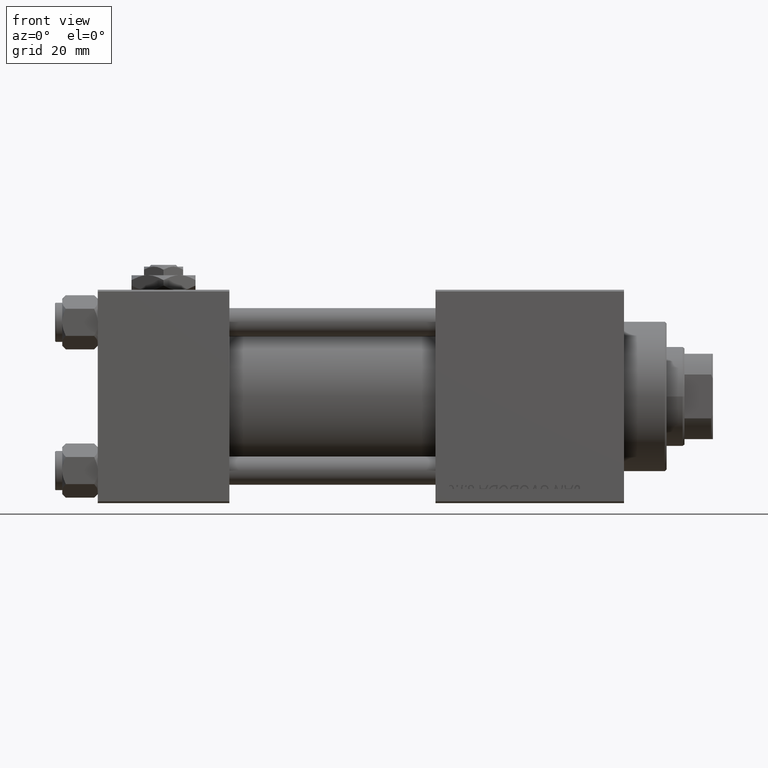
[diagram: clean part render]
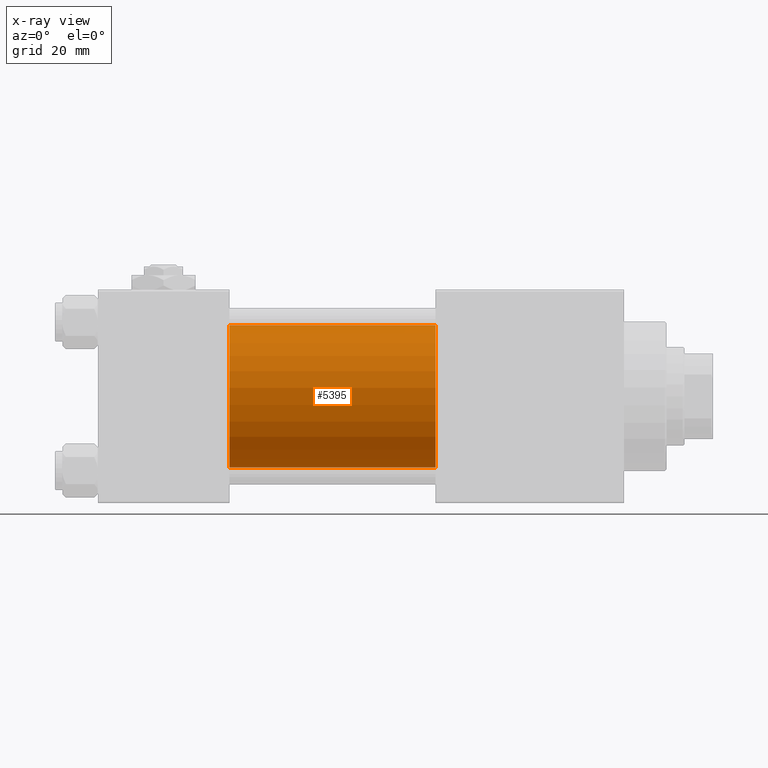
[diagram: x-ray — body ghosted, one internal face saturated and labeled with its STEP entity id]
A machine part, front view, then the same camera in x-ray: the body is ghosted and one INTERNAL B-rep face — a face not visible from any outside direction — is saturated and labeled: STEP entity #5395.
In plain terms, the highlighted cylindrical surface (partial cylindrical patch) has radius 20 mm, axis along (-1, -0, -0).
Its self-contained STEP definition (entity closure, byte-faithful):
#1471 = CARTESIAN_POINT ( 'NONE',  ( 37.00000000000000000, -2.602085213965210642E-15, 20.00000000000000000 ) ) ;
#2171 = CARTESIAN_POINT ( 'NONE',  ( 95.00000000000000000, -2.602085213965210642E-15, 20.00000000000000000 ) ) ;
#5395 = ADVANCED_FACE ( 'NONE', ( #25619 ), #33757, .F. ) ;
#5647 = CARTESIAN_POINT ( 'NONE',  ( 95.00000000000000000, -2.602085213965210642E-15, 0.000000000000000000 ) ) ;
#6841 = CARTESIAN_POINT ( 'NONE',  ( 37.00000000000000000, -2.602085213965210642E-15, 0.000000000000000000 ) ) ;
#8421 = CIRCLE ( 'NONE', #36095, 20.00000000000000000 ) ;
#9446 = CARTESIAN_POINT ( 'NONE',  ( 95.00000000000000000, -1.527916156705046464E-16, -20.00000000000000000 ) ) ;
#9568 = EDGE_CURVE ( 'NONE', #34275, #47223, #8421, .T. ) ;
#11355 = VERTEX_POINT ( 'NONE', #27008 ) ;
#11622 = AXIS2_PLACEMENT_3D ( 'NONE', #5647, #38218, #49783 ) ;
#13919 = VECTOR ( 'NONE', #25475, 1000.000000000000000 ) ;
#16258 = EDGE_LOOP ( 'NONE', ( #40739, #18411, #40755, #45714 ) ) ;
#16555 = LINE ( 'NONE', #9446, #13919 ) ;
#18020 = CARTESIAN_POINT ( 'NONE',  ( 95.00000000000000000, -2.602085213965210642E-15, 20.00000000000000000 ) ) ;
#18217 = DIRECTION ( 'NONE',  ( -1.000000000000000000, -0.000000000000000000, -0.000000000000000000 ) ) ;
#18411 = ORIENTED_EDGE ( 'NONE', *, *, #23654, .T. ) ;
#18923 = AXIS2_PLACEMENT_3D ( 'NONE', #6841, #18935, #34953 ) ;
#18935 = DIRECTION ( 'NONE',  ( 1.000000000000000000, 0.000000000000000000, 0.000000000000000000 ) ) ;
#23654 = EDGE_CURVE ( 'NONE', #47223, #11355, #16555, .T. ) ;
#25475 = DIRECTION ( 'NONE',  ( -1.000000000000000000, -0.000000000000000000, -0.000000000000000000 ) ) ;
#25619 = FACE_OUTER_BOUND ( 'NONE', #16258, .T. ) ;
#27008 = CARTESIAN_POINT ( 'NONE',  ( 37.00000000000000000, -1.527916156705046464E-16, -20.00000000000000000 ) ) ;
#33757 = CYLINDRICAL_SURFACE ( 'NONE', #11622, 20.00000000000000000 ) ;
#34275 = VERTEX_POINT ( 'NONE', #18020 ) ;
#34410 = DIRECTION ( 'NONE',  ( 1.000000000000000000, 0.000000000000000000, 0.000000000000000000 ) ) ;
#34953 = DIRECTION ( 'NONE',  ( 0.000000000000000000, 0.000000000000000000, -1.000000000000000000 ) ) ;
#35826 = EDGE_CURVE ( 'NONE', #34275, #49611, #42131, .T. ) ;
#36095 = AXIS2_PLACEMENT_3D ( 'NONE', #38082, #34410, #46743 ) ;
#38082 = CARTESIAN_POINT ( 'NONE',  ( 95.00000000000000000, -2.602085213965210642E-15, 0.000000000000000000 ) ) ;
#38218 = DIRECTION ( 'NONE',  ( -1.000000000000000000, -0.000000000000000000, -0.000000000000000000 ) ) ;
#39901 = CARTESIAN_POINT ( 'NONE',  ( 95.00000000000000000, -1.527916156705046464E-16, -20.00000000000000000 ) ) ;
#40739 = ORIENTED_EDGE ( 'NONE', *, *, #9568, .T. ) ;
#40755 = ORIENTED_EDGE ( 'NONE', *, *, #47637, .F. ) ;
#41551 = CIRCLE ( 'NONE', #18923, 20.00000000000000000 ) ;
#42131 = LINE ( 'NONE', #2171, #44424 ) ;
#44424 = VECTOR ( 'NONE', #18217, 1000.000000000000000 ) ;
#45714 = ORIENTED_EDGE ( 'NONE', *, *, #35826, .F. ) ;
#46743 = DIRECTION ( 'NONE',  ( 0.000000000000000000, 0.000000000000000000, -1.000000000000000000 ) ) ;
#47223 = VERTEX_POINT ( 'NONE', #39901 ) ;
#47637 = EDGE_CURVE ( 'NONE', #49611, #11355, #41551, .T. ) ;
#49611 = VERTEX_POINT ( 'NONE', #1471 ) ;
#49783 = DIRECTION ( 'NONE',  ( 0.000000000000000000, 0.000000000000000000, 1.000000000000000000 ) ) ;